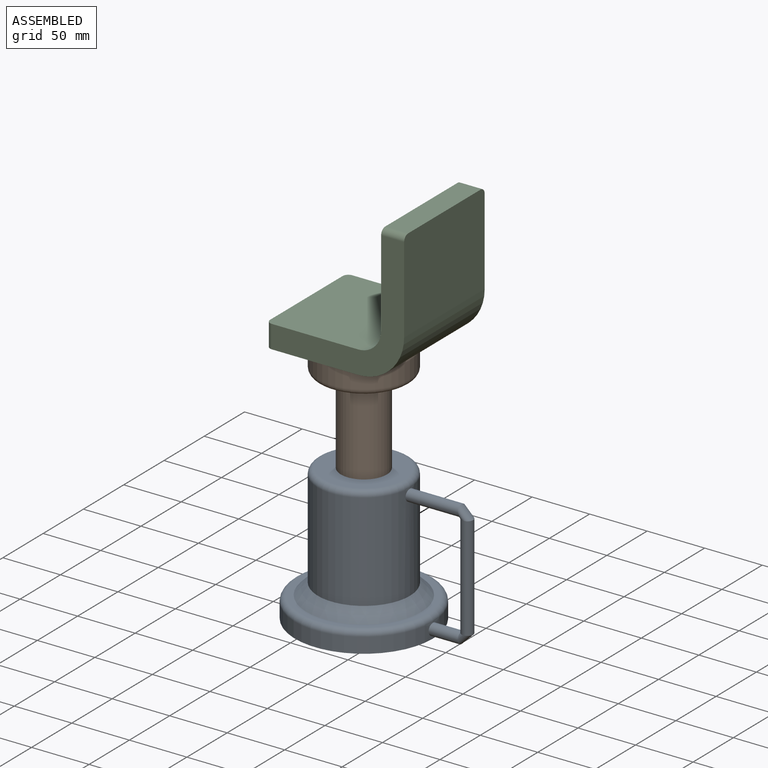
[diagram: assembled view]
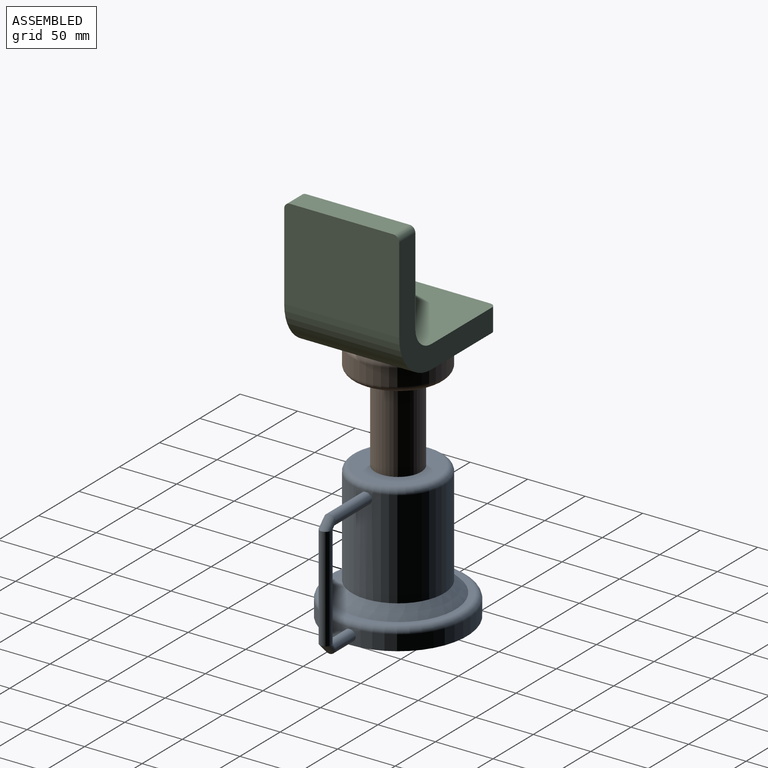
[diagram: assembled view, second angle]
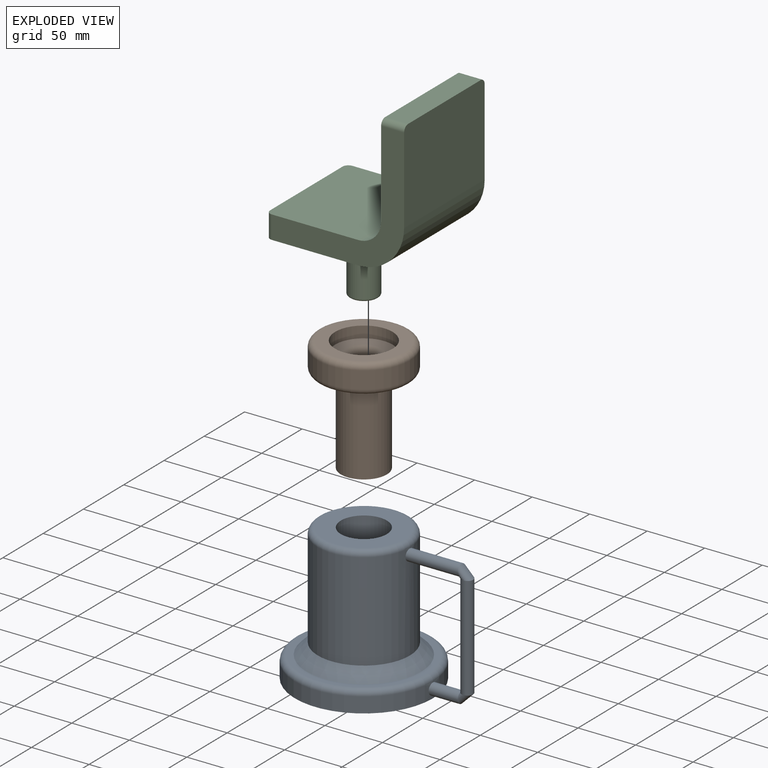
[diagram: exploded view]
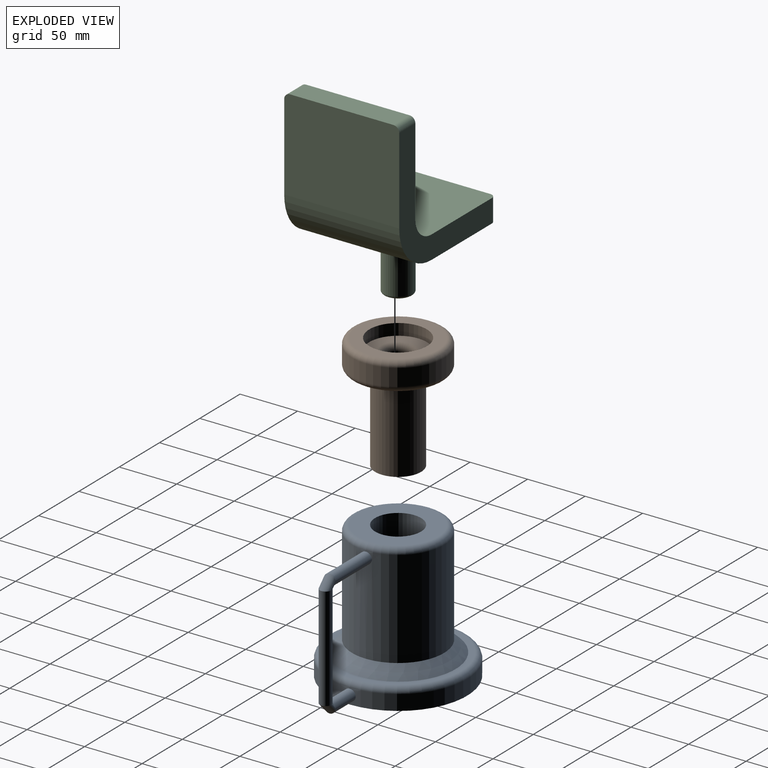
[diagram: exploded view, second angle]
ASSEMBLY  parts=3 mates=3
PART A: 16 faces, bbox 160.8x129.9x118.3 mm
  f0: cylinder r=60mm len=120mm, axis (0,0,-1), area 4933.1mm2, adj f1,f9,f12
  f1: plane 120x120mm, normal (0,0,-1), area 9346.2mm2, adj f0,f2
  f2: cylinder r=25mm len=50mm, axis (0,0,-1), area 1420.1mm2, adj f1,f3
  f3: plane 50x50mm, normal (0,0,-1), area 706.9mm2, adj f2,f4
  f4: cylinder r=20mm len=109.25mm, axis (0,0,-1), area 13729.3mm2, adj f3,f5
  f5: plane 70x70mm, normal (0,0,1), area 2591.8mm2, adj f4,f8
  f6: cylinder r=40mm len=85mm, axis (0,0,-1), area 21284.2mm2, adj f8,f10,f11
  f7: plane 110x110mm, normal (0,0,1), area 1649.3mm2, adj f9,f10
  f8: torus R=35mm, axis (0,0,1), area 1884.3mm2, adj f5,f6
  f9: torus R=55mm, axis (0,0,1), area 2871.2mm2, adj f0,f7
  f10: cone r=50mm half-angle=45deg, axis (0,0,-1), area 3998.6mm2, adj f6,f7
  f11: cylinder r=5mm len=45.31mm, axis (1,0,0), area 1418.6mm2, adj f6,f13
  f12: cylinder r=5mm len=25.21mm, axis (1,0,0), area 788.7mm2, adj f0,f15
  f13: torus R=5mm, axis (0,1,0), area 246.7mm2, adj f11,f14
  f14: cylinder r=5mm len=90mm, axis (0,0,-1), area 2827.4mm2, adj f13,f15
  f15: torus R=5mm, axis (0,1,0), area 246.7mm2, adj f12,f14
PART B: 12 faces, bbox 86.6x86.6x100 mm
  f0: cylinder r=40mm len=80mm, axis (0,0,-1), area 3769.9mm2, adj f10,f11
  f1: plane 70x70mm, normal (0,0,1), area 1885mm2, adj f5,f10
  f2: cylinder r=20mm len=75mm, axis (0,0,-1), area 9424.8mm2, adj f3,f4
  f3: plane 70x70mm, normal (0,0,-1), area 2591.8mm2, adj f2,f11
  f4: plane 40x40mm, normal (0,0,-1), area 1256.6mm2, adj f2
  f5: cylinder r=25mm len=50mm, axis (0,0,1), area 1570.8mm2, adj f1,f6
  f6: plane 50x50mm, normal (0,0,1), area 1256.6mm2, adj f5,f9
  f7: cylinder r=10mm len=45mm, axis (0,0,1), area 2827.4mm2, adj f8,f9
  f8: plane 20x20mm, normal (0,0,1), area 314.2mm2, adj f7
  f9: torus R=15mm, axis (0,0,1), area 583.1mm2, adj f6,f7
  f10: torus R=35mm, axis (0,0,1), area 1884.3mm2, adj f0,f1
  f11: torus R=35mm, axis (0,0,-1), area 1884.3mm2, adj f0,f3
PART C: 18 faces, bbox 120x100x170 mm
  f0: cylinder r=20mm len=100mm, axis (0,1,0), area 3141.6mm2, adj f1,f7,f8,f9
  f1: plane 100x80mm, normal (0,0,1), area 7989.3mm2, adj f0,f2,f8,f9,f11,f13
  f2: plane 90x20mm, normal (-1,0,0), area 1800mm2, adj f1,f3,f11,f13
  f3: plane 100x80mm, normal (0,0,-1), area 7027.2mm2, adj f2,f4,f8,f9,f11,f13,f16
  f4: cylinder r=40mm len=100mm, axis (0,1,0), area 6283.2mm2, adj f3,f5,f8,f9
  f5: plane 100x80mm, normal (1,0,0), area 7989.3mm2, adj f4,f6,f8,f9,f10,f12
  f6: plane 90x20mm, normal (0,0,1), area 1800mm2, adj f5,f7,f10,f12
  f7: plane 100x80mm, normal (-1,0,0), area 7989.3mm2, adj f0,f6,f8,f9,f10,f12
  f8: plane 115x115mm, normal (0,-1,0), area 3942.5mm2, adj f0,f1,f3,f4,f5,f7,f12,f13
  f9: plane 115x115mm, normal (0,1,0), area 3942.5mm2, adj f0,f1,f3,f4,f5,f7,f10,f11
  f10: cylinder r=5mm len=20mm, axis (-1,0,0), area 157.1mm2, adj f5,f6,f7,f9
  f11: cylinder r=5mm len=20mm, axis (0,0,-1), area 157.1mm2, adj f1,f2,f3,f9
  f12: cylinder r=5mm len=20mm, axis (1,0,0), area 157.1mm2, adj f5,f6,f7,f8
  f13: cylinder r=5mm len=20mm, axis (0,0,1), area 157.1mm2, adj f1,f2,f3,f8
  f14: cylinder r=12.5mm len=43mm, axis (0,0,1), area 3377.2mm2, adj f16,f17
  f15: plane 21x21mm, normal (0,0,-1), area 346.4mm2, adj f17
  f16: torus R=17.5mm, axis (0,0,1), area 706.5mm2, adj f3,f14
  f17: torus R=10.5mm, axis (0,0,-1), area 232.4mm2, adj f14,f15
PLACE A t=(-16.06,21.3,-50.79)mm
PLACE B t=(-16.06,21.3,67.51)mm
PLACE C t=(-16.06,21.3,167.51)mm
MATE cylindrical C.f14 <-> B.f7  axis (0,0,1) through (-16.06,21.3,141.01)mm
MATE planar C.f3 <-> B.f0  axis (0,0,-1) through (-27.37,21.3,167.51)mm
MATE cylindrical A.f0 <-> B.f2  axis (0,0,-1) through (-16.06,21.3,67.51)mm
